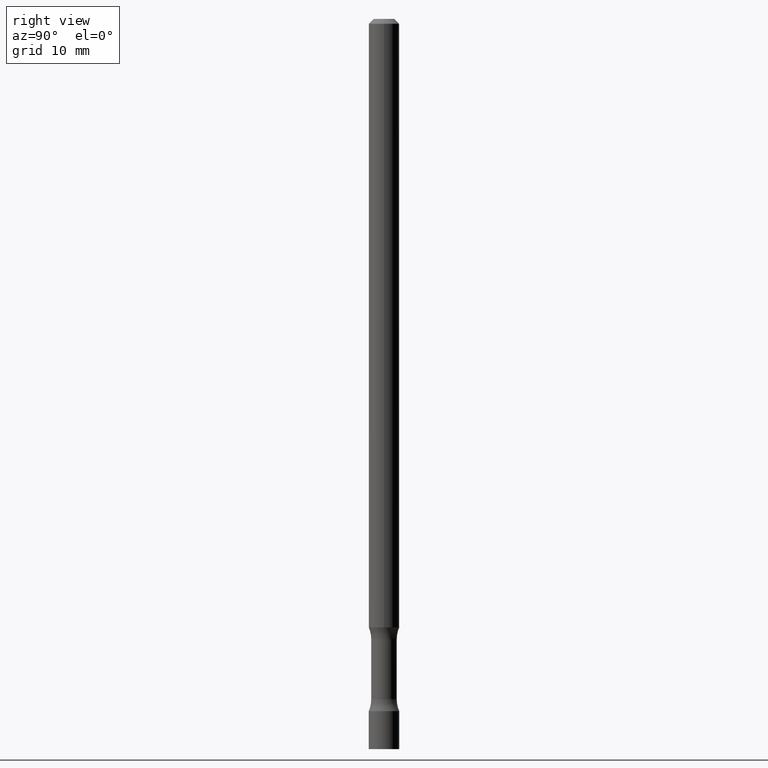
[diagram: clean part render]
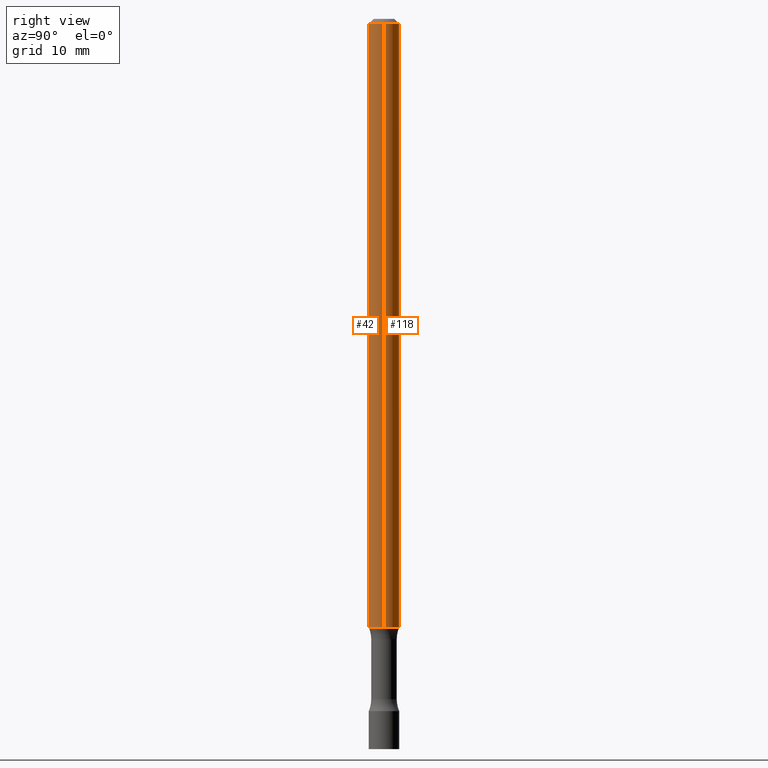
[diagram: same view with one multi-face feature highlighted, each face labeled with its STEP entity id]
A machine part, right view. The highlighted faces form ONE feature: a constant-radius fillet chain: 2 tangent blend faces with common blend radius 1.5875 mm. The faces share edges in the B-rep.
Their STEP definitions:
[1] entity #118 (Cylinder):
#11 = CARTESIAN_POINT ( 'NONE',  ( 0.000000000000000000, 0.000000000000000000, 0.000000000000000000 ) ) ;
#22 = VECTOR ( 'NONE', #462, 39.37007874015748143 ) ;
#26 = DIRECTION ( 'NONE',  ( 1.000000000000000000, -6.982962677686276966E-15, 0.000000000000000000 ) ) ;
#40 = DIRECTION ( 'NONE',  ( -2.445468806185136877E-29, 3.491481338843145188E-15, 1.000000000000000000 ) ) ;
#51 = CARTESIAN_POINT ( 'NONE',  ( 0.06249999999999981265, -4.986107516375828376E-16, -0.02000000000000013572 ) ) ;
#58 = FACE_OUTER_BOUND ( 'NONE', #301, .T. ) ;
#74 = CARTESIAN_POINT ( 'NONE',  ( 4.890937612370306439E-31, -6.982962677686338448E-17, -0.02000000000000013572 ) ) ;
#83 = LINE ( 'NONE', #302, #239 ) ;
#111 = AXIS2_PLACEMENT_3D ( 'NONE', #11, #401, #248 ) ;
#115 = VERTEX_POINT ( 'NONE', #282 ) ;
#118 = ADVANCED_FACE ( 'NONE', ( #58 ), #173, .T. ) ;
#119 = CIRCLE ( 'NONE', #354, 0.06250000000000001388 ) ;
#120 = DIRECTION ( 'NONE',  ( 1.000000000000000000, -6.982962677686266711E-15, 0.000000000000000000 ) ) ;
#173 = CYLINDRICAL_SURFACE ( 'NONE', #111, 0.06249999999999991673 ) ;
#188 = VERTEX_POINT ( 'NONE', #51 ) ;
#199 = VERTEX_POINT ( 'NONE', #262 ) ;
#219 = EDGE_CURVE ( 'NONE', #115, #199, #119, .T. ) ;
#222 = AXIS2_PLACEMENT_3D ( 'NONE', #74, #502, #120 ) ;
#237 = CARTESIAN_POINT ( 'NONE',  ( -0.06249999999999981265, 3.666055405785269414E-16, -0.02000000000000013572 ) ) ;
#239 = VECTOR ( 'NONE', #40, 39.37007874015748143 ) ;
#248 = DIRECTION ( 'NONE',  ( 1.000000000000000000, -6.982962677686266711E-15, 4.876176775795935793E-29 ) ) ;
#258 = ORIENTED_EDGE ( 'NONE', *, *, #385, .T. ) ;
#262 = CARTESIAN_POINT ( 'NONE',  ( -0.06250000000000001388, -3.955177277092293616E-15, -2.500000000000000000 ) ) ;
#282 = CARTESIAN_POINT ( 'NONE',  ( 0.06250000000000001388, -9.165138514463256612E-15, -2.500000000000000000 ) ) ;
#296 = ORIENTED_EDGE ( 'NONE', *, *, #426, .F. ) ;
#301 = EDGE_LOOP ( 'NONE', ( #382, #258, #296, #393 ) ) ;
#302 = CARTESIAN_POINT ( 'NONE',  ( 0.06249999999999991673, -4.364351673553910778E-16, 3.047610484872455667E-30 ) ) ;
#307 = LINE ( 'NONE', #312, #22 ) ;
#312 = CARTESIAN_POINT ( 'NONE',  ( -0.06249999999999991673, 4.440892098500620245E-16, -3.074334431409311910E-30 ) ) ;
#354 = AXIS2_PLACEMENT_3D ( 'NONE', #418, #456, #26 ) ;
#355 = CIRCLE ( 'NONE', #222, 0.06249999999999981265 ) ;
#382 = ORIENTED_EDGE ( 'NONE', *, *, #219, .T. ) ;
#385 = EDGE_CURVE ( 'NONE', #199, #458, #307, .T. ) ;
#393 = ORIENTED_EDGE ( 'NONE', *, *, #412, .F. ) ;
#401 = DIRECTION ( 'NONE',  ( -2.445468806185136597E-29, 3.491481338843145583E-15, 1.000000000000000000 ) ) ;
#412 = EDGE_CURVE ( 'NONE', #115, #188, #83, .T. ) ;
#418 = CARTESIAN_POINT ( 'NONE',  ( 6.113672015462842613E-29, -8.728703347107864943E-15, -2.500000000000000000 ) ) ;
#426 = EDGE_CURVE ( 'NONE', #188, #458, #355, .T. ) ;
#456 = DIRECTION ( 'NONE',  ( -2.445468806185136597E-29, 3.491481338843145583E-15, 1.000000000000000000 ) ) ;
#458 = VERTEX_POINT ( 'NONE', #237 ) ;
#462 = DIRECTION ( 'NONE',  ( -2.445468806185136877E-29, 3.491481338843145188E-15, 1.000000000000000000 ) ) ;
#502 = DIRECTION ( 'NONE',  ( -2.445468806185136597E-29, 3.491481338843145583E-15, 1.000000000000000000 ) ) ;
[2] entity #42 (Cylinder):
#5 = EDGE_CURVE ( 'NONE', #458, #188, #14, .T. ) ;
#14 = CIRCLE ( 'NONE', #63, 0.06249999999999981265 ) ;
#22 = VECTOR ( 'NONE', #462, 39.37007874015748143 ) ;
#33 = CARTESIAN_POINT ( 'NONE',  ( 6.113672015462842613E-29, -8.728703347107864943E-15, -2.500000000000000000 ) ) ;
#36 = DIRECTION ( 'NONE',  ( 1.000000000000000000, -6.982962677686266711E-15, 0.000000000000000000 ) ) ;
#39 = DIRECTION ( 'NONE',  ( -2.445468806185136597E-29, 3.491481338843145583E-15, 1.000000000000000000 ) ) ;
#40 = DIRECTION ( 'NONE',  ( -2.445468806185136877E-29, 3.491481338843145188E-15, 1.000000000000000000 ) ) ;
#42 = ADVANCED_FACE ( 'NONE', ( #310 ), #93, .T. ) ;
#51 = CARTESIAN_POINT ( 'NONE',  ( 0.06249999999999981265, -4.986107516375828376E-16, -0.02000000000000013572 ) ) ;
#63 = AXIS2_PLACEMENT_3D ( 'NONE', #466, #39, #36 ) ;
#83 = LINE ( 'NONE', #302, #239 ) ;
#93 = CYLINDRICAL_SURFACE ( 'NONE', #323, 0.06249999999999991673 ) ;
#95 = DIRECTION ( 'NONE',  ( -2.445468806185136597E-29, 3.491481338843145583E-15, 1.000000000000000000 ) ) ;
#110 = ORIENTED_EDGE ( 'NONE', *, *, #5, .F. ) ;
#115 = VERTEX_POINT ( 'NONE', #282 ) ;
#138 = ORIENTED_EDGE ( 'NONE', *, *, #506, .T. ) ;
#187 = DIRECTION ( 'NONE',  ( 1.000000000000000000, -6.982962677686276966E-15, 0.000000000000000000 ) ) ;
#188 = VERTEX_POINT ( 'NONE', #51 ) ;
#199 = VERTEX_POINT ( 'NONE', #262 ) ;
#223 = CIRCLE ( 'NONE', #398, 0.06250000000000001388 ) ;
#229 = ORIENTED_EDGE ( 'NONE', *, *, #385, .F. ) ;
#237 = CARTESIAN_POINT ( 'NONE',  ( -0.06249999999999981265, 3.666055405785269414E-16, -0.02000000000000013572 ) ) ;
#239 = VECTOR ( 'NONE', #40, 39.37007874015748143 ) ;
#261 = EDGE_LOOP ( 'NONE', ( #229, #138, #272, #110 ) ) ;
#262 = CARTESIAN_POINT ( 'NONE',  ( -0.06250000000000001388, -3.955177277092293616E-15, -2.500000000000000000 ) ) ;
#272 = ORIENTED_EDGE ( 'NONE', *, *, #412, .T. ) ;
#282 = CARTESIAN_POINT ( 'NONE',  ( 0.06250000000000001388, -9.165138514463256612E-15, -2.500000000000000000 ) ) ;
#286 = CARTESIAN_POINT ( 'NONE',  ( 0.000000000000000000, 0.000000000000000000, 0.000000000000000000 ) ) ;
#302 = CARTESIAN_POINT ( 'NONE',  ( 0.06249999999999991673, -4.364351673553910778E-16, 3.047610484872455667E-30 ) ) ;
#307 = LINE ( 'NONE', #312, #22 ) ;
#310 = FACE_OUTER_BOUND ( 'NONE', #261, .T. ) ;
#312 = CARTESIAN_POINT ( 'NONE',  ( -0.06249999999999991673, 4.440892098500620245E-16, -3.074334431409311910E-30 ) ) ;
#317 = DIRECTION ( 'NONE',  ( 1.000000000000000000, -6.982962677686266711E-15, 4.876176775795935793E-29 ) ) ;
#323 = AXIS2_PLACEMENT_3D ( 'NONE', #286, #95, #317 ) ;
#385 = EDGE_CURVE ( 'NONE', #199, #458, #307, .T. ) ;
#398 = AXIS2_PLACEMENT_3D ( 'NONE', #33, #424, #187 ) ;
#412 = EDGE_CURVE ( 'NONE', #115, #188, #83, .T. ) ;
#424 = DIRECTION ( 'NONE',  ( -2.445468806185136597E-29, 3.491481338843145583E-15, 1.000000000000000000 ) ) ;
#458 = VERTEX_POINT ( 'NONE', #237 ) ;
#462 = DIRECTION ( 'NONE',  ( -2.445468806185136877E-29, 3.491481338843145188E-15, 1.000000000000000000 ) ) ;
#466 = CARTESIAN_POINT ( 'NONE',  ( 4.890937612370306439E-31, -6.982962677686338448E-17, -0.02000000000000013572 ) ) ;
#506 = EDGE_CURVE ( 'NONE', #199, #115, #223, .T. ) ;